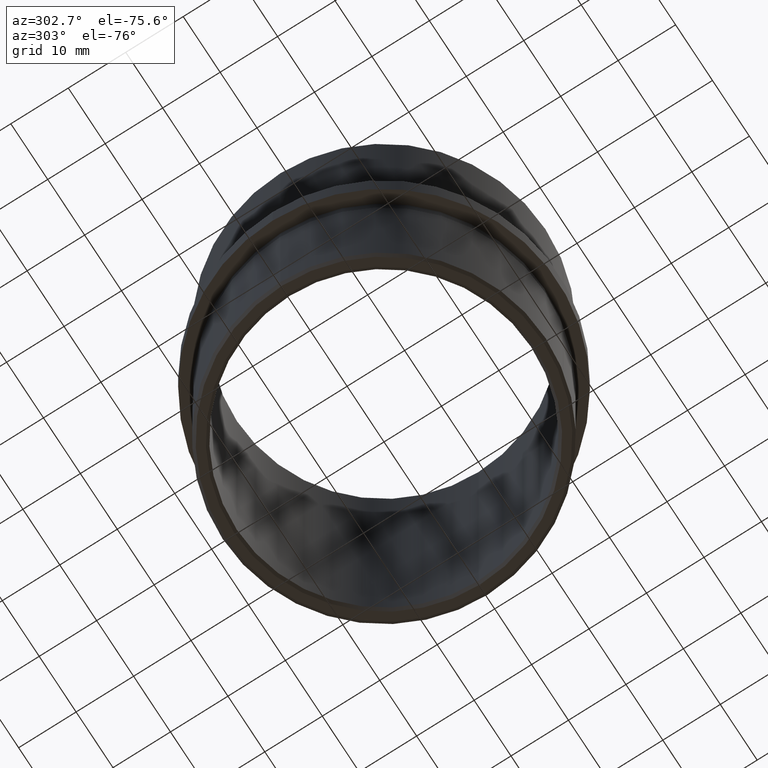
[diagram: clean part render]
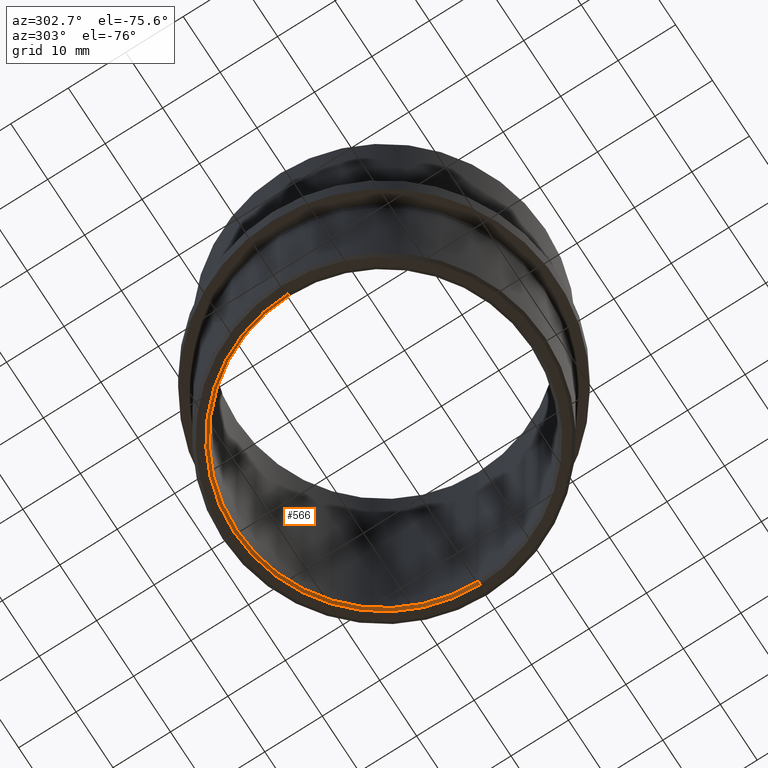
[diagram: same view with one face highlighted and labeled with its STEP entity id]
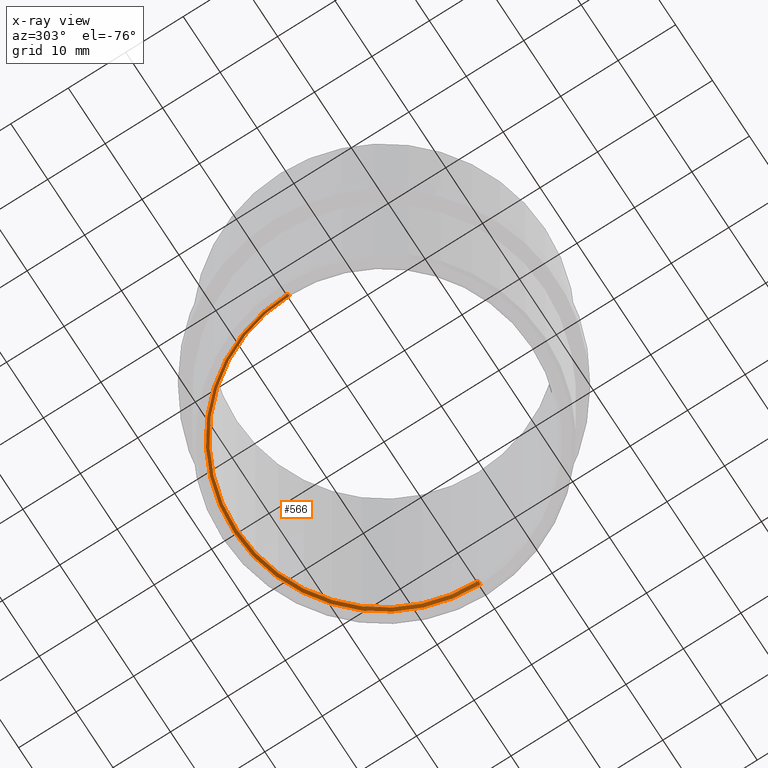
[diagram: x-ray of the same camera — body ghosted, the highlighted face saturated]
A machine part, auxiliary view. The second image highlights one B-rep face of the part: STEP entity #566.
The next image is the same camera in x-ray: the body ghosted, the highlighted face saturated — about 0% of this face is hidden behind the body in this view.
In plain terms, the highlighted conical surface has half-angle 45 deg.
Its self-contained STEP definition (entity closure, byte-faithful):
#141 = CARTESIAN_POINT ( 'NONE',  ( 25.60000000000000100, 0.0000000000000000000, -31.99999999999998600 ) ) ;
#566 = ADVANCED_FACE ( 'NONE', ( #18000 ), #579, .F. ) ;
#579 = CONICAL_SURFACE ( 'NONE', #16740, 26.10000000000001200, 0.7853981633974447300 ) ;
#588 = DIRECTION ( 'NONE',  ( -0.0000000000000000000, -0.0000000000000000000, 1.000000000000000000 ) ) ;
#623 = LINE ( 'NONE', #2157, #20417 ) ;
#638 = DIRECTION ( 'NONE',  ( -0.7071067811865451300, 0.0000000000000000000, -0.7071067811865500200 ) ) ;
#2157 = CARTESIAN_POINT ( 'NONE',  ( -26.10000000000001200, 0.0000000000000000000, -32.50000000000000000 ) ) ;
#2283 = EDGE_CURVE ( 'NONE', #4529, #16817, #7006, .T. ) ;
#3098 = CARTESIAN_POINT ( 'NONE',  ( -25.60000000000000100, 3.135095805817224400E-015, -31.99999999999998600 ) ) ;
#3410 = DIRECTION ( 'NONE',  ( 0.7071067811865451300, 8.659560562354903300E-017, -0.7071067811865500200 ) ) ;
#3873 = ORIENTED_EDGE ( 'NONE', *, *, #2283, .F. ) ;
#4194 = AXIS2_PLACEMENT_3D ( 'NONE', #7952, #6292, #6446 ) ;
#4529 = VERTEX_POINT ( 'NONE', #3098 ) ;
#5306 = CARTESIAN_POINT ( 'NONE',  ( 0.0000000000000000000, 0.0000000000000000000, -32.50000000000000000 ) ) ;
#5351 = CIRCLE ( 'NONE', #20930, 26.10000000000001200 ) ;
#6292 = DIRECTION ( 'NONE',  ( -0.0000000000000000000, -0.0000000000000000000, -1.000000000000000000 ) ) ;
#6446 = DIRECTION ( 'NONE',  ( -1.000000000000000000, 0.0000000000000000000, 0.0000000000000000000 ) ) ;
#7006 = CIRCLE ( 'NONE', #4194, 25.60000000000000100 ) ;
#7952 = CARTESIAN_POINT ( 'NONE',  ( 0.0000000000000000000, 0.0000000000000000000, -31.99999999999998600 ) ) ;
#9842 = CARTESIAN_POINT ( 'NONE',  ( 0.0000000000000000000, 0.0000000000000000000, -32.50000000000000000 ) ) ;
#10824 = EDGE_CURVE ( 'NONE', #15322, #12576, #5351, .T. ) ;
#12449 = ORIENTED_EDGE ( 'NONE', *, *, #10824, .F. ) ;
#12576 = VERTEX_POINT ( 'NONE', #16755 ) ;
#14459 = EDGE_CURVE ( 'NONE', #4529, #12576, #623, .T. ) ;
#14897 = LINE ( 'NONE', #16580, #15424 ) ;
#14958 = EDGE_LOOP ( 'NONE', ( #18405, #3873, #15291, #12449 ) ) ;
#15291 = ORIENTED_EDGE ( 'NONE', *, *, #14459, .T. ) ;
#15322 = VERTEX_POINT ( 'NONE', #16501 ) ;
#15341 = DIRECTION ( 'NONE',  ( -1.000000000000000000, 0.0000000000000000000, 0.0000000000000000000 ) ) ;
#15424 = VECTOR ( 'NONE', #3410, 1000.000000000000100 ) ;
#16452 = EDGE_CURVE ( 'NONE', #16817, #15322, #14897, .T. ) ;
#16501 = CARTESIAN_POINT ( 'NONE',  ( 26.10000000000001200, 3.196328145774593500E-015, -32.50000000000000000 ) ) ;
#16580 = CARTESIAN_POINT ( 'NONE',  ( 26.10000000000001200, 3.196328145774593500E-015, -32.50000000000000000 ) ) ;
#16740 = AXIS2_PLACEMENT_3D ( 'NONE', #9842, #17877, #18026 ) ;
#16755 = CARTESIAN_POINT ( 'NONE',  ( -26.10000000000001200, 0.0000000000000000000, -32.50000000000000000 ) ) ;
#16817 = VERTEX_POINT ( 'NONE', #141 ) ;
#17877 = DIRECTION ( 'NONE',  ( -0.0000000000000000000, -0.0000000000000000000, -1.000000000000000000 ) ) ;
#18000 = FACE_OUTER_BOUND ( 'NONE', #14958, .T. ) ;
#18026 = DIRECTION ( 'NONE',  ( -1.000000000000000000, 0.0000000000000000000, 0.0000000000000000000 ) ) ;
#18405 = ORIENTED_EDGE ( 'NONE', *, *, #16452, .F. ) ;
#20417 = VECTOR ( 'NONE', #638, 1000.000000000000100 ) ;
#20930 = AXIS2_PLACEMENT_3D ( 'NONE', #5306, #588, #15341 ) ;